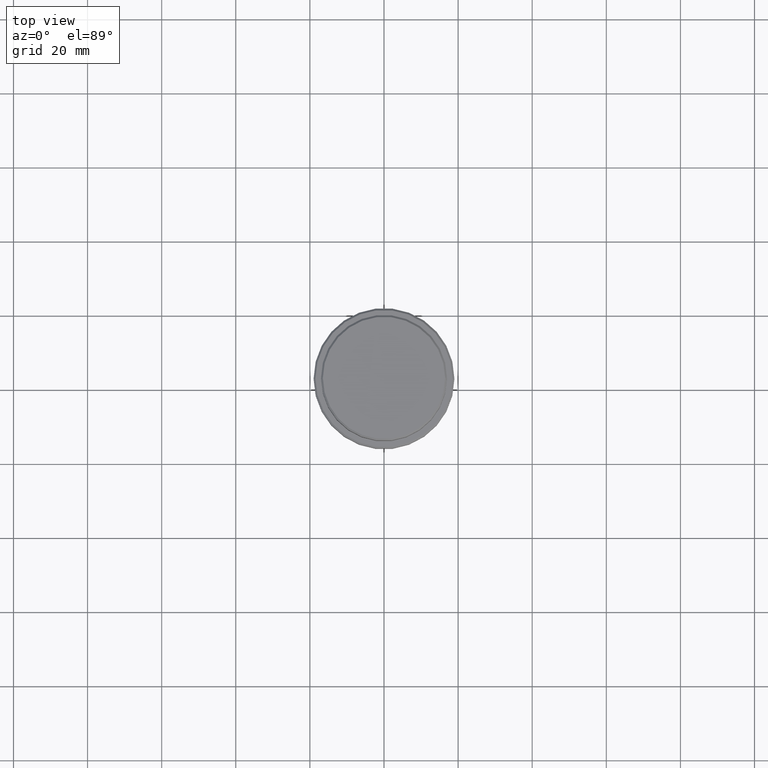
[diagram: clean part render]
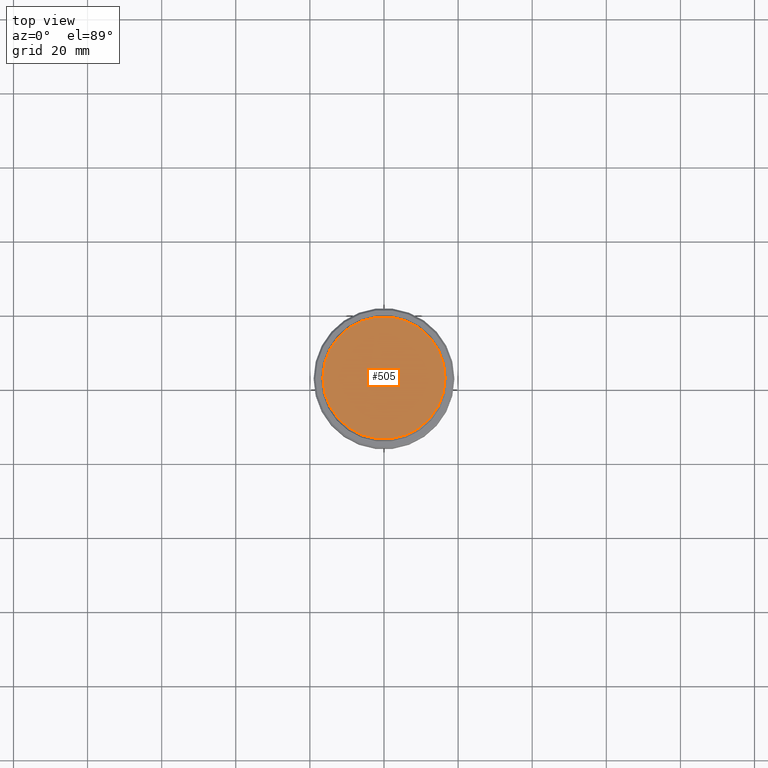
[diagram: same view with one face highlighted and labeled with its STEP entity id]
A machine part, top view. The second image highlights one B-rep face of the part: STEP entity #505.
In plain terms, the highlighted planar face has unit normal (0, -0, 1).
Its self-contained STEP definition (entity closure, byte-faithful):
#82 = DIRECTION ( 'NONE',  ( 1.000000000000000000, 0.000000000000000000, 0.000000000000000000 ) ) ;
#112 = CIRCLE ( 'NONE', #697, 16.50000000000001421 ) ;
#202 = AXIS2_PLACEMENT_3D ( 'NONE', #1055, #896, #1087 ) ;
#221 = PLANE ( 'NONE',  #1014 ) ;
#329 = CARTESIAN_POINT ( 'NONE',  ( 0.000000000000000000, 0.000000000000000000, 0.000000000000000000 ) ) ;
#341 = ORIENTED_EDGE ( 'NONE', *, *, #458, .T. ) ;
#378 = CARTESIAN_POINT ( 'NONE',  ( 0.000000000000000000, 0.000000000000000000, 0.000000000000000000 ) ) ;
#388 = ORIENTED_EDGE ( 'NONE', *, *, #790, .T. ) ;
#458 = EDGE_CURVE ( 'NONE', #1392, #459, #112, .T. ) ;
#459 = VERTEX_POINT ( 'NONE', #503 ) ;
#503 = CARTESIAN_POINT ( 'NONE',  ( -16.50000000000001421, 0.000000000000000000, 0.000000000000000000 ) ) ;
#505 = ADVANCED_FACE ( 'NONE', ( #1406 ), #221, .T. ) ;
#697 = AXIS2_PLACEMENT_3D ( 'NONE', #378, #1048, #82 ) ;
#790 = EDGE_CURVE ( 'NONE', #459, #1392, #1370, .T. ) ;
#859 = EDGE_LOOP ( 'NONE', ( #388, #341 ) ) ;
#896 = DIRECTION ( 'NONE',  ( -0.000000000000000000, -0.000000000000000000, 1.000000000000000000 ) ) ;
#953 = DIRECTION ( 'NONE',  ( 0.000000000000000000, -0.000000000000000000, 1.000000000000000000 ) ) ;
#1014 = AXIS2_PLACEMENT_3D ( 'NONE', #329, #953, #1179 ) ;
#1048 = DIRECTION ( 'NONE',  ( -0.000000000000000000, -0.000000000000000000, 1.000000000000000000 ) ) ;
#1055 = CARTESIAN_POINT ( 'NONE',  ( 0.000000000000000000, 0.000000000000000000, 0.000000000000000000 ) ) ;
#1087 = DIRECTION ( 'NONE',  ( 1.000000000000000000, 0.000000000000000000, 0.000000000000000000 ) ) ;
#1179 = DIRECTION ( 'NONE',  ( 1.000000000000000000, 0.000000000000000000, 0.000000000000000000 ) ) ;
#1353 = CARTESIAN_POINT ( 'NONE',  ( 16.50000000000001421, 2.051283388571816887E-15, 0.000000000000000000 ) ) ;
#1370 = CIRCLE ( 'NONE', #202, 16.50000000000001421 ) ;
#1392 = VERTEX_POINT ( 'NONE', #1353 ) ;
#1406 = FACE_OUTER_BOUND ( 'NONE', #859, .T. ) ;